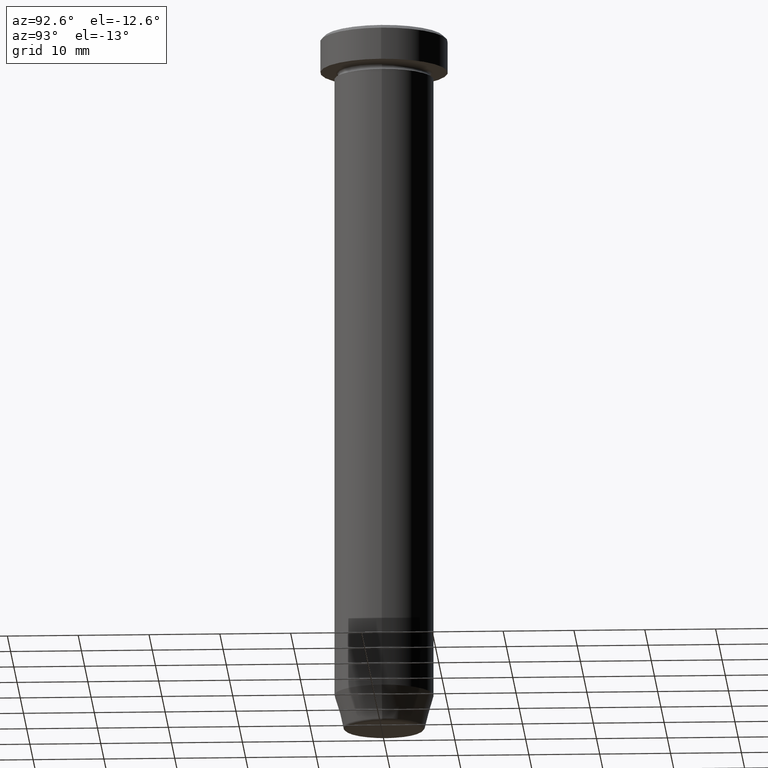
[diagram: clean part render]
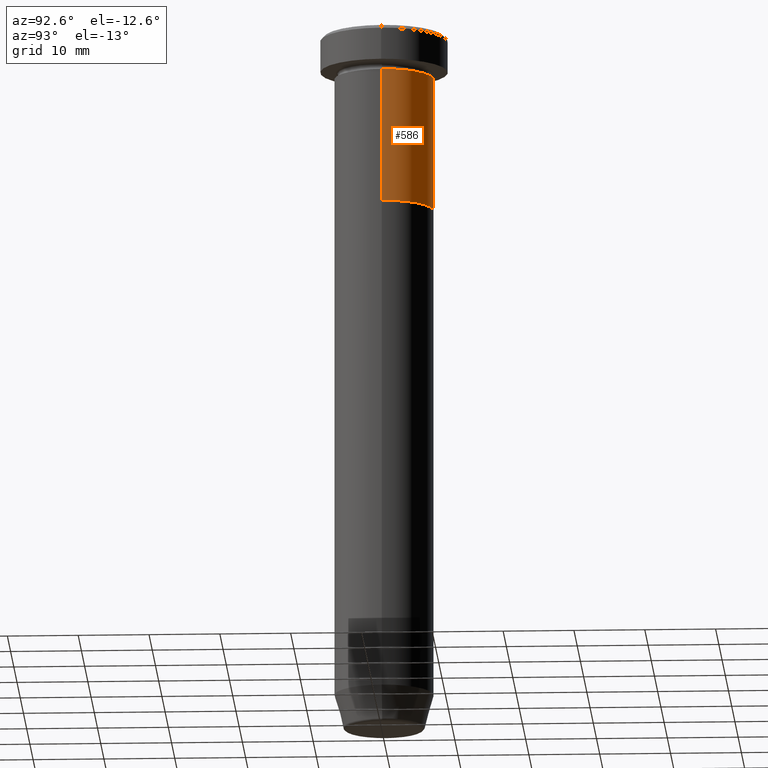
[diagram: same view with one face highlighted and labeled with its STEP entity id]
A machine part, auxiliary view. The second image highlights one B-rep face of the part: STEP entity #586.
In plain terms, the highlighted cylindrical surface (partial cylindrical patch) has radius 7 mm, axis along (-0, -0, 1).
Its self-contained STEP definition (entity closure, byte-faithful):
#26 = CARTESIAN_POINT ( 'NONE',  ( 0.000000000000000000, 0.000000000000000000, -6.000000000000000000 ) ) ;
#30 = ORIENTED_EDGE ( 'NONE', *, *, #420, .F. ) ;
#46 = DIRECTION ( 'NONE',  ( 1.000000000000000000, 0.000000000000000000, 0.000000000000000000 ) ) ;
#60 = ORIENTED_EDGE ( 'NONE', *, *, #181, .F. ) ;
#79 = DIRECTION ( 'NONE',  ( -0.000000000000000000, -0.000000000000000000, 1.000000000000000000 ) ) ;
#96 = ORIENTED_EDGE ( 'NONE', *, *, #205, .T. ) ;
#134 = DIRECTION ( 'NONE',  ( 1.000000000000000000, 0.000000000000000000, 0.000000000000000000 ) ) ;
#168 = DIRECTION ( 'NONE',  ( 1.000000000000000000, 0.000000000000000000, 0.000000000000000000 ) ) ;
#179 = DIRECTION ( 'NONE',  ( -0.000000000000000000, -0.000000000000000000, 1.000000000000000000 ) ) ;
#181 = EDGE_CURVE ( 'NONE', #578, #549, #222, .T. ) ;
#205 = EDGE_CURVE ( 'NONE', #578, #543, #284, .T. ) ;
#222 = LINE ( 'NONE', #591, #597 ) ;
#225 = EDGE_CURVE ( 'NONE', #543, #566, #408, .T. ) ;
#284 = CIRCLE ( 'NONE', #471, 7.000000000000000000 ) ;
#286 = CYLINDRICAL_SURFACE ( 'NONE', #460, 7.000000000000000000 ) ;
#305 = ORIENTED_EDGE ( 'NONE', *, *, #225, .T. ) ;
#313 = CARTESIAN_POINT ( 'NONE',  ( 0.000000000000000000, 0.000000000000000000, -25.00000000000000000 ) ) ;
#333 = CARTESIAN_POINT ( 'NONE',  ( 7.000000000000000000, 0.000000000000000000, -25.00000000000000000 ) ) ;
#334 = VECTOR ( 'NONE', #587, 1000.000000000000000 ) ;
#406 = DIRECTION ( 'NONE',  ( -0.000000000000000000, -0.000000000000000000, 1.000000000000000000 ) ) ;
#408 = LINE ( 'NONE', #503, #334 ) ;
#411 = CARTESIAN_POINT ( 'NONE',  ( 0.000000000000000000, 0.000000000000000000, 0.000000000000000000 ) ) ;
#418 = CARTESIAN_POINT ( 'NONE',  ( -7.000000000000000000, 8.572527594031473190E-16, -25.00000000000000000 ) ) ;
#420 = EDGE_CURVE ( 'NONE', #549, #566, #423, .T. ) ;
#423 = CIRCLE ( 'NONE', #541, 7.000000000000000000 ) ;
#460 = AXIS2_PLACEMENT_3D ( 'NONE', #411, #473, #46 ) ;
#470 = CARTESIAN_POINT ( 'NONE',  ( 7.000000000000000000, 0.000000000000000000, -6.000000000000000000 ) ) ;
#471 = AXIS2_PLACEMENT_3D ( 'NONE', #313, #79, #134 ) ;
#473 = DIRECTION ( 'NONE',  ( -0.000000000000000000, -0.000000000000000000, 1.000000000000000000 ) ) ;
#503 = CARTESIAN_POINT ( 'NONE',  ( -7.000000000000000000, 8.572527594031473190E-16, 0.000000000000000000 ) ) ;
#511 = EDGE_LOOP ( 'NONE', ( #96, #305, #30, #60 ) ) ;
#515 = CARTESIAN_POINT ( 'NONE',  ( -7.000000000000000000, 8.572527594031473190E-16, -6.000000000000000000 ) ) ;
#541 = AXIS2_PLACEMENT_3D ( 'NONE', #26, #406, #168 ) ;
#543 = VERTEX_POINT ( 'NONE', #418 ) ;
#549 = VERTEX_POINT ( 'NONE', #470 ) ;
#566 = VERTEX_POINT ( 'NONE', #515 ) ;
#578 = VERTEX_POINT ( 'NONE', #333 ) ;
#586 = ADVANCED_FACE ( 'NONE', ( #598 ), #286, .T. ) ;
#587 = DIRECTION ( 'NONE',  ( -0.000000000000000000, -0.000000000000000000, 1.000000000000000000 ) ) ;
#591 = CARTESIAN_POINT ( 'NONE',  ( 7.000000000000000000, 0.000000000000000000, 0.000000000000000000 ) ) ;
#597 = VECTOR ( 'NONE', #179, 1000.000000000000000 ) ;
#598 = FACE_OUTER_BOUND ( 'NONE', #511, .T. ) ;